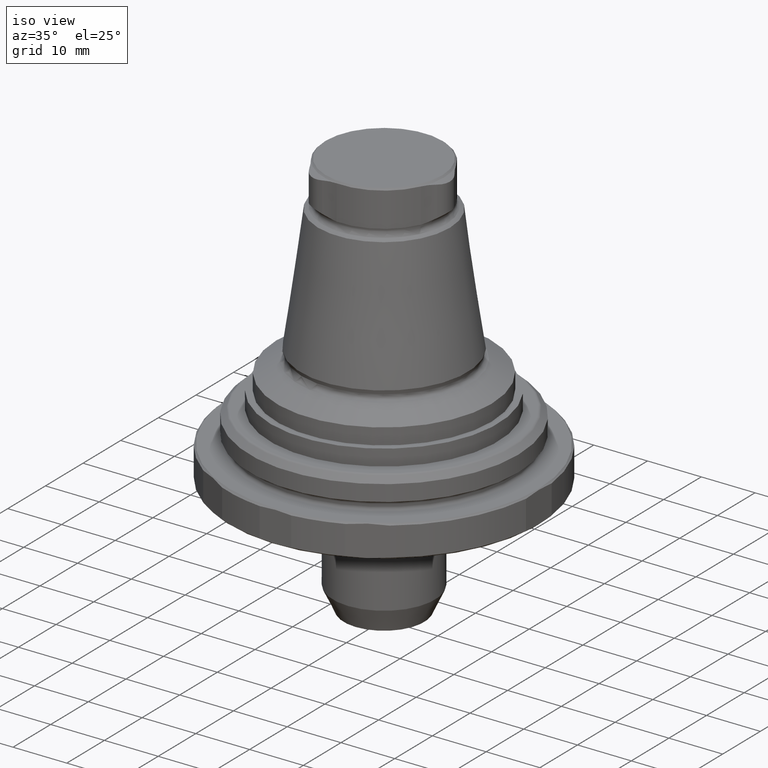
[diagram: clean part render]
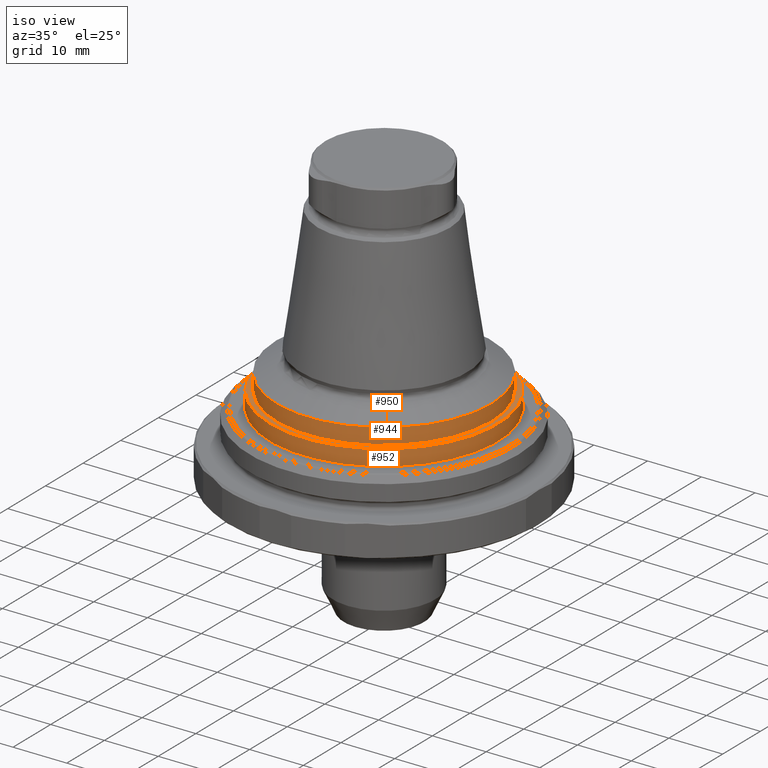
[diagram: same view with one multi-face feature highlighted, each face labeled with its STEP entity id]
A machine part, iso view. The highlighted faces form ONE feature: a stepped (counterbored) hole: 2 coaxial cylindrical walls of radii 20 -> 21.2 mm joined by 1 annular planar shoulder face(s). The faces share edges in the B-rep.
Their STEP definitions:
[1] entity #952 (Cylinder):
#144=CIRCLE('',#1060,21.2);
#146=CIRCLE('',#1064,21.2);
#302=ORIENTED_EDGE('',*,*,#493,.T.);
#303=ORIENTED_EDGE('',*,*,#495,.F.);
#493=EDGE_CURVE('',#602,#602,#144,.T.);
#495=EDGE_CURVE('',#604,#604,#146,.T.);
#602=VERTEX_POINT('',#1651);
#604=VERTEX_POINT('',#1657);
#742=EDGE_LOOP('',(#302));
#743=EDGE_LOOP('',(#303));
#842=FACE_BOUND('',#742,.T.);
#843=FACE_BOUND('',#743,.T.);
#905=CYLINDRICAL_SURFACE('',#1063,21.2);
#952=ADVANCED_FACE('',(#842,#843),#905,.T.);
#1060=AXIS2_PLACEMENT_3D('',#1650,#1261,#1262);
#1063=AXIS2_PLACEMENT_3D('',#1655,#1267,#1268);
#1064=AXIS2_PLACEMENT_3D('',#1656,#1269,#1270);
#1261=DIRECTION('',(-5.21126297509511E-18,6.38359491786664E-17,-1.));
#1262=DIRECTION('',(-1.,6.12303176911188E-17,1.08491142720197E-17));
#1267=DIRECTION('',(5.21126297509513E-18,-2.60563148754757E-18,1.));
#1268=DIRECTION('',(1.,-6.12303176911188E-17,-1.08491142720197E-17));
#1269=DIRECTION('',(-5.20001084984554E-33,-4.76419527885826E-18,-1.));
#1270=DIRECTION('',(0.,1.,-4.76419527885826E-18));
#1650=CARTESIAN_POINT('',(5.02962487989086E-15,-9.39389992177497E-32,8.));
#1651=CARTESIAN_POINT('',(-21.2,1.29808273505172E-15,8.));
#1655=CARTESIAN_POINT('',(5.02180798542821E-15,3.90844723132125E-18,6.5));
#1656=CARTESIAN_POINT('',(5.0140123049001E-15,7.8062874953794E-18,5.00407078564789));
#1657=CARTESIAN_POINT('',(5.0140123049001E-15,21.2,5.00407078564789));
[2] entity #944 (Cylinder):
#136=CIRCLE('',#1045,20.);
#137=CIRCLE('',#1047,20.);
#286=ORIENTED_EDGE('',*,*,#485,.T.);
#287=ORIENTED_EDGE('',*,*,#486,.F.);
#485=EDGE_CURVE('',#594,#594,#136,.T.);
#486=EDGE_CURVE('',#595,#595,#137,.T.);
#594=VERTEX_POINT('',#1628);
#595=VERTEX_POINT('',#1631);
#726=EDGE_LOOP('',(#286));
#727=EDGE_LOOP('',(#287));
#826=FACE_BOUND('',#726,.T.);
#827=FACE_BOUND('',#727,.T.);
#902=CYLINDRICAL_SURFACE('',#1046,20.);
#944=ADVANCED_FACE('',(#826,#827),#902,.T.);
#1045=AXIS2_PLACEMENT_3D('',#1627,#1231,#1232);
#1046=AXIS2_PLACEMENT_3D('',#1629,#1233,#1234);
#1047=AXIS2_PLACEMENT_3D('',#1630,#1235,#1236);
#1231=DIRECTION('',(1.27319154200133E-16,-7.79579225983867E-33,-1.));
#1232=DIRECTION('',(-1.,6.12303176911189E-17,-1.27319154200133E-16));
#1233=DIRECTION('',(1.27319154200133E-16,-7.79579225983867E-33,-1.));
#1234=DIRECTION('',(-1.,6.12303176911189E-17,-1.27319154200133E-16));
#1235=DIRECTION('',(1.27319154200133E-16,-7.79579225983867E-33,-1.));
#1236=DIRECTION('',(-1.,6.12303176911189E-17,-1.27319154200133E-16));
#1627=CARTESIAN_POINT('',(4.64714912830484E-15,-2.84546417484111E-31,11.0040707856479));
#1628=CARTESIAN_POINT('',(-20.,1.22460635382238E-15,11.0040707856479));
#1629=CARTESIAN_POINT('',(0.,0.,47.5040707856479));
#1630=CARTESIAN_POINT('',(5.02962487989086E-15,-3.07965529262873E-31,8.));
#1631=CARTESIAN_POINT('',(-20.,1.22460635382238E-15,8.));
[3] entity #950 (Plane):
#99=PLANE('',#1059);
#137=CIRCLE('',#1047,20.);
#144=CIRCLE('',#1060,21.2);
#298=ORIENTED_EDGE('',*,*,#493,.F.);
#299=ORIENTED_EDGE('',*,*,#486,.T.);
#486=EDGE_CURVE('',#595,#595,#137,.T.);
#493=EDGE_CURVE('',#602,#602,#144,.T.);
#595=VERTEX_POINT('',#1631);
#602=VERTEX_POINT('',#1651);
#738=EDGE_LOOP('',(#298));
#739=EDGE_LOOP('',(#299));
#838=FACE_BOUND('',#738,.T.);
#839=FACE_BOUND('',#739,.T.);
#950=ADVANCED_FACE('',(#838,#839),#99,.T.);
#1047=AXIS2_PLACEMENT_3D('',#1630,#1235,#1236);
#1059=AXIS2_PLACEMENT_3D('',#1649,#1259,#1260);
#1060=AXIS2_PLACEMENT_3D('',#1650,#1261,#1262);
#1235=DIRECTION('',(1.27319154200133E-16,-7.79579225983867E-33,-1.));
#1236=DIRECTION('',(-1.,6.12303176911189E-17,-1.27319154200133E-16));
#1259=DIRECTION('',(5.21126297509511E-18,-6.38359491786664E-17,1.));
#1260=DIRECTION('',(2.27763771384892E-16,1.,6.38359491786664E-17));
#1261=DIRECTION('',(-5.21126297509511E-18,6.38359491786664E-17,-1.));
#1262=DIRECTION('',(-1.,6.12303176911188E-17,1.08491142720197E-17));
#1630=CARTESIAN_POINT('',(5.02962487989086E-15,-3.07965529262873E-31,8.));
#1631=CARTESIAN_POINT('',(-20.,1.22460635382238E-15,8.));
#1649=CARTESIAN_POINT('',(5.02962487989086E-15,-9.39389992177497E-32,8.));
#1650=CARTESIAN_POINT('',(5.02962487989086E-15,-9.39389992177497E-32,8.));
#1651=CARTESIAN_POINT('',(-21.2,1.29808273505172E-15,8.));